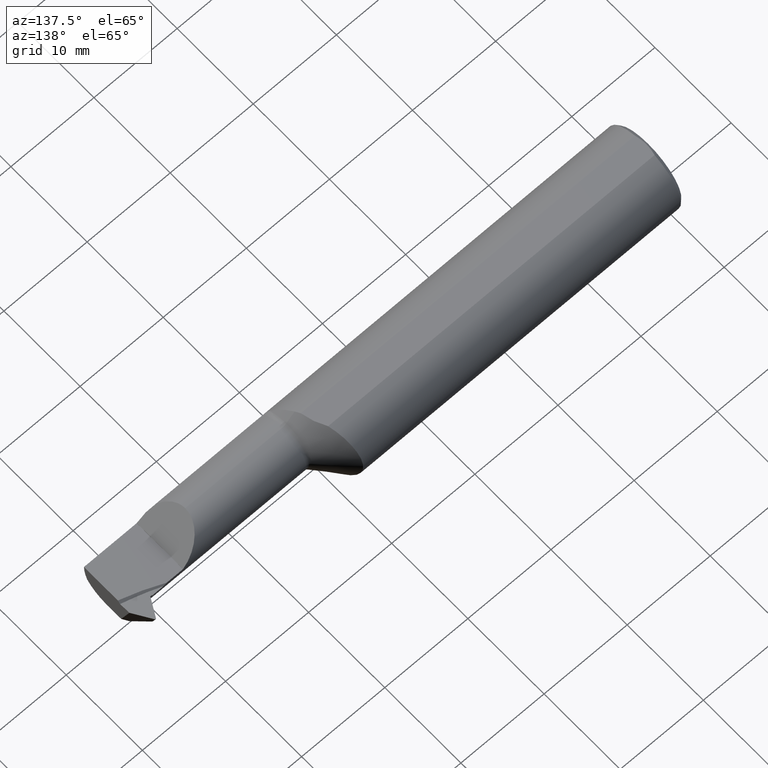
[diagram: clean part render]
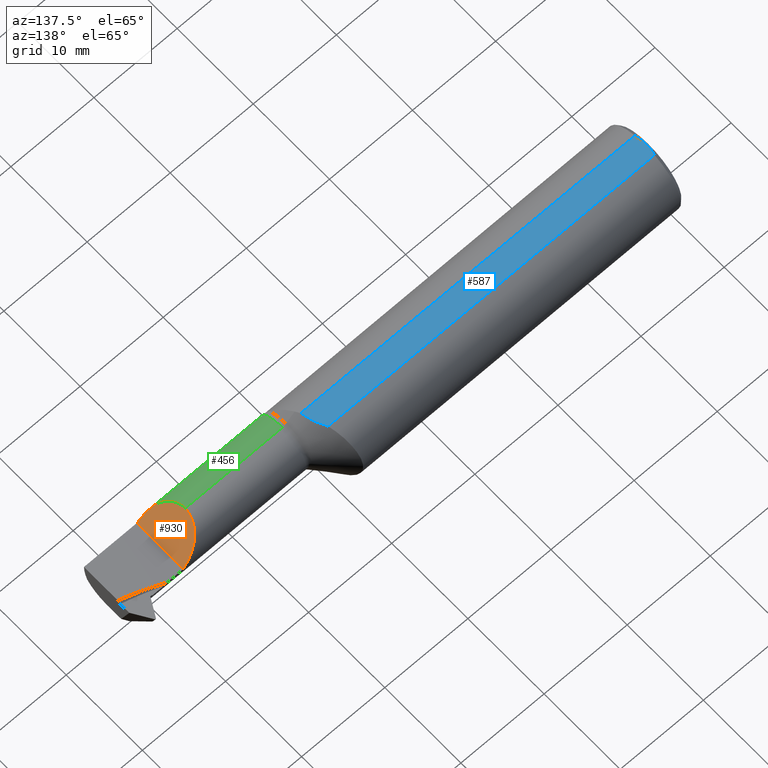
[diagram: same view with three faces highlighted in distinct colors, each labeled with its STEP entity id]
A machine part, auxiliary view with three faces highlighted in distinct colors.
Their STEP definitions:

[orange] entity #930 — the highlighted planar face has unit normal (-0.7071, 0, -0.7071).
#11 = VERTEX_POINT ( 'NONE', #324 ) ;
#23 = VERTEX_POINT ( 'NONE', #655 ) ;
#60 = VERTEX_POINT ( 'NONE', #679 ) ;
#91 = VECTOR ( 'NONE', #835, 39.37007874015748143 ) ;
#129 = ORIENTED_EDGE ( 'NONE', *, *, #424, .F. ) ;
#153 = CARTESIAN_POINT ( 'NONE',  ( 2.125649999999999373, -0.07234999999999980336, 0.1250000000000000000 ) ) ;
#158 =( BOUNDED_CURVE ( )  B_SPLINE_CURVE ( 3, ( #946, #606, #449, #924 ),
 .UNSPECIFIED., .F., .F. ) 
 B_SPLINE_CURVE_WITH_KNOTS ( ( 4, 4 ),
 ( 5.376748757289210978, 6.283185307179586232 ),
 .UNSPECIFIED. ) 
 CURVE ( )  GEOMETRIC_REPRESENTATION_ITEM ( )  RATIONAL_B_SPLINE_CURVE ( ( 1.000000000000000000, 0.9326950686634385423, 0.9326950686634385423, 1.000000000000000000 ) ) 
 REPRESENTATION_ITEM ( '' )  );
#187 = EDGE_CURVE ( 'NONE', #23, #11, #1000, .T. ) ;
#223 = EDGE_LOOP ( 'NONE', ( #329, #712, #841, #129 ) ) ;
#324 = CARTESIAN_POINT ( 'NONE',  ( 2.250000000000000000, 0.05264830998857562838, 0.0006500000000000630707 ) ) ;
#329 = ORIENTED_EDGE ( 'NONE', *, *, #947, .F. ) ;
#334 =( BOUNDED_CURVE ( )  B_SPLINE_CURVE ( 3, ( #153, #1027, #654, #896 ),
 .UNSPECIFIED., .F., .T. ) 
 B_SPLINE_CURVE_WITH_KNOTS ( ( 4, 4 ),
 ( 0.000000000000000000, 1.565596303359943819 ),
 .UNSPECIFIED. ) 
 CURVE ( )  GEOMETRIC_REPRESENTATION_ITEM ( )  RATIONAL_B_SPLINE_CURVE ( ( 1.000000000000000000, 0.8059619166604294893, 0.8059619166604294893, 1.000000000000000000 ) ) 
 REPRESENTATION_ITEM ( '' )  );
#393 = EDGE_CURVE ( 'NONE', #23, #980, #943, .T. ) ;
#424 = EDGE_CURVE ( 'NONE', #60, #11, #334, .T. ) ;
#449 = CARTESIAN_POINT ( 'NONE',  ( 2.125649999999998929, -0.1114715001235031949, 0.1250000000000000278 ) ) ;
#514 = CARTESIAN_POINT ( 'NONE',  ( 2.223545696637380331, -0.1872570901984921543, 0.02710430336261951054 ) ) ;
#532 = CARTESIAN_POINT ( 'NONE',  ( 2.173580599499921995, -0.1707639599170699407, 0.07706940050007732301 ) ) ;
#543 = CARTESIAN_POINT ( 'NONE',  ( 2.250000000000000000, -0.1873488724278853934, 0.0006500000000000633960 ) ) ;
#606 = CARTESIAN_POINT ( 'NONE',  ( 2.142779785539520976, -0.1466433954276131213, 0.1078702144604782448 ) ) ;
#654 = CARTESIAN_POINT ( 'NONE',  ( 2.177079229028278551, 0.05226911685279674036, 0.07357077097172100288 ) ) ;
#655 = CARTESIAN_POINT ( 'NONE',  ( 2.250000000000000000, -0.1873488724278853934, 0.0006500000000000633960 ) ) ;
#679 = CARTESIAN_POINT ( 'NONE',  ( 2.125649999999999373, -0.07234999999999980336, 0.1250000000000000000 ) ) ;
#696 = FACE_OUTER_BOUND ( 'NONE', #223, .T. ) ;
#712 = ORIENTED_EDGE ( 'NONE', *, *, #393, .F. ) ;
#749 = CARTESIAN_POINT ( 'NONE',  ( 2.250000000000000000, -1.050000000000000044, 0.0006500000000000633960 ) ) ;
#773 = CARTESIAN_POINT ( 'NONE',  ( 2.250000000000000000, -1.050000000000000044, 0.0006500000000000633960 ) ) ;
#810 = CARTESIAN_POINT ( 'NONE',  ( 2.173580599499921995, -0.1707639599170699407, 0.07706940050007732301 ) ) ;
#835 = DIRECTION ( 'NONE',  ( -0.000000000000000000, 1.000000000000000000, -0.000000000000000000 ) ) ;
#841 = ORIENTED_EDGE ( 'NONE', *, *, #187, .T. ) ;
#849 = AXIS2_PLACEMENT_3D ( 'NONE', #749, #853, #988 ) ;
#853 = DIRECTION ( 'NONE',  ( -0.7071067811865441310, 0.000000000000000000, -0.7071067811865510144 ) ) ;
#896 = CARTESIAN_POINT ( 'NONE',  ( 2.250000000000000000, 0.05264830998857562838, 0.0006500000000000630707 ) ) ;
#924 = CARTESIAN_POINT ( 'NONE',  ( 2.125649999999999373, -0.07234999999999980336, 0.1250000000000000000 ) ) ;
#930 = ADVANCED_FACE ( 'NONE', ( #696 ), #939, .F. ) ;
#939 = PLANE ( 'NONE',  #849 ) ;
#943 =( BOUNDED_CURVE ( )  B_SPLINE_CURVE ( 3, ( #543, #514, #957, #810 ),
 .UNSPECIFIED., .F., .T. ) 
 B_SPLINE_CURVE_WITH_KNOTS ( ( 4, 4 ),
 ( 4.715858429565467524, 5.136341099405665744 ),
 .UNSPECIFIED. ) 
 CURVE ( )  GEOMETRIC_REPRESENTATION_ITEM ( )  RATIONAL_B_SPLINE_CURVE ( ( 1.000000000000000000, 0.9853203850599061564, 0.9853203850599061564, 1.000000000000000000 ) ) 
 REPRESENTATION_ITEM ( '' )  );
#946 = CARTESIAN_POINT ( 'NONE',  ( 2.173580599499921995, -0.1707639599170699407, 0.07706940050007732301 ) ) ;
#947 = EDGE_CURVE ( 'NONE', #980, #60, #158, .T. ) ;
#957 = CARTESIAN_POINT ( 'NONE',  ( 2.197693056332493899, -0.1816464236030419233, 0.05295694366750571674 ) ) ;
#980 = VERTEX_POINT ( 'NONE', #532 ) ;
#988 = DIRECTION ( 'NONE',  ( -0.7071067811865509034, 0.000000000000000000, 0.7071067811865440200 ) ) ;
#1000 = LINE ( 'NONE', #773, #91 ) ;
#1027 = CARTESIAN_POINT ( 'NONE',  ( 2.125649999999998929, 0.0005717568805388748661, 0.1250000000000000278 ) ) ;

[blue] entity #587 — the highlighted planar face has unit normal (-0, 0, -1).
#1 = CARTESIAN_POINT ( 'NONE',  ( 2.500000000000000000, -0.05073361804563106953, 0.1803500000000000381 ) ) ;
#20 = VECTOR ( 'NONE', #664, 39.37007874015748143 ) ;
#21 = DIRECTION ( 'NONE',  ( -1.000000000000000000, 0.000000000000000000, 0.000000000000000000 ) ) ;
#56 = VERTEX_POINT ( 'NONE', #814 ) ;
#77 = CARTESIAN_POINT ( 'NONE',  ( 0.008000000000000249967, -0.008560842633729545334, 0.1803500000000000381 ) ) ;
#83 = PLANE ( 'NONE',  #656 ) ;
#97 = CARTESIAN_POINT ( 'NONE',  ( 1.597294288080051805, -0.04178548040504061895, 0.1803500000000000658 ) ) ;
#116 = B_SPLINE_CURVE_WITH_KNOTS ( 'NONE', 3,
 ( #917, #597, #173, #829, #667, #498 ),
 .UNSPECIFIED., .F., .F.,
 ( 4, 2, 4 ),
 ( 0.004855974516636805266, 0.005500369355264136430, 0.006144764193891467594 ),
 .UNSPECIFIED. ) ;
#128 = EDGE_CURVE ( 'NONE', #536, #258, #741, .T. ) ;
#130 = ORIENTED_EDGE ( 'NONE', *, *, #761, .T. ) ;
#159 = CARTESIAN_POINT ( 'NONE',  ( 0.008612241053610889679, -0.01707100630372282435, 0.1803500000000000381 ) ) ;
#173 = CARTESIAN_POINT ( 'NONE',  ( 0.01101443691611249387, 0.03415726871037062795, 0.1803500000000000381 ) ) ;
#178 = CARTESIAN_POINT ( 'NONE',  ( 1.591046750313348745, -0.01534753237029205103, 0.1803500000000000103 ) ) ;
#200 = ORIENTED_EDGE ( 'NONE', *, *, #760, .F. ) ;
#240 = ORIENTED_EDGE ( 'NONE', *, *, #641, .F. ) ;
#242 = CARTESIAN_POINT ( 'NONE',  ( 0.01499999999999942525, -0.05073361804563293609, 0.1803500000000000381 ) ) ;
#258 = VERTEX_POINT ( 'NONE', #783 ) ;
#260 = CARTESIAN_POINT ( 'NONE',  ( 1.570550515836688588, 0.03494845237870435745, 0.1803499999999999548 ) ) ;
#288 = LINE ( 'NONE', #705, #742 ) ;
#321 = CARTESIAN_POINT ( 'NONE',  ( 0.01276000437992189963, -0.04246172269127172078, 0.1803500000000000381 ) ) ;
#398 = CARTESIAN_POINT ( 'NONE',  ( 1.598359171801058576, -0.05073361804563105565, 0.1803500000000000381 ) ) ;
#459 = CARTESIAN_POINT ( 'NONE',  ( 0.007999999999990098365, 7.430558883300628535E-16, 0.1803500000000000381 ) ) ;
#460 = VERTEX_POINT ( 'NONE', #569 ) ;
#498 = CARTESIAN_POINT ( 'NONE',  ( 0.007999999999990098365, 7.430558883300628535E-16, 0.1803500000000000381 ) ) ;
#503 = CARTESIAN_POINT ( 'NONE',  ( 1.595585963931341222, -0.03292301117428798884, 0.1803500000000000658 ) ) ;
#507 = EDGE_LOOP ( 'NONE', ( #240, #200, #541, #130, #826 ) ) ;
#536 = VERTEX_POINT ( 'NONE', #398 ) ;
#541 = ORIENTED_EDGE ( 'NONE', *, *, #577, .T. ) ;
#569 = CARTESIAN_POINT ( 'NONE',  ( 0.01500000000000079568, 0.05073361804563106953, 0.1803500000000000381 ) ) ;
#577 = EDGE_CURVE ( 'NONE', #460, #940, #116, .T. ) ;
#579 = CARTESIAN_POINT ( 'NONE',  ( 1.578555425751704266, 0.01874826884798286991, 0.1803500000000000103 ) ) ;
#587 = ADVANCED_FACE ( 'NONE', ( #755 ), #83, .F. ) ;
#597 = CARTESIAN_POINT ( 'NONE',  ( 0.01277025903650790516, 0.04249959126806788362, 0.1803500000000000381 ) ) ;
#601 = B_SPLINE_CURVE_WITH_KNOTS ( 'NONE', 3,
 ( #978, #260, #579, #908, #178, #503, #97, #750 ),
 .UNSPECIFIED., .F., .F.,
 ( 4, 2, 2, 4 ),
 ( 0.004201767959908210559, 0.005580933394130890846, 0.006270516111242234458, 0.006960098828353578071 ),
 .UNSPECIFIED. ) ;
#641 = EDGE_CURVE ( 'NONE', #56, #536, #601, .T. ) ;
#656 = AXIS2_PLACEMENT_3D ( 'NONE', #677, #673, #21 ) ;
#664 = DIRECTION ( 'NONE',  ( -1.000000000000000000, -0.000000000000000000, -0.000000000000000000 ) ) ;
#667 = CARTESIAN_POINT ( 'NONE',  ( 0.008000000000000399153, 0.008563083437642069265, 0.1803500000000000381 ) ) ;
#673 = DIRECTION ( 'NONE',  ( -0.000000000000000000, 0.000000000000000000, -1.000000000000000000 ) ) ;
#677 = CARTESIAN_POINT ( 'NONE',  ( 0.000000000000000000, 0.1749999999999999889, 0.1803500000000000381 ) ) ;
#704 = B_SPLINE_CURVE_WITH_KNOTS ( 'NONE', 3,
 ( #787, #77, #159, #1042, #321, #242 ),
 .UNSPECIFIED., .F., .F.,
 ( 4, 2, 4 ),
 ( 0.006144764193891467594, 0.006788990406055669946, 0.007433216618219871431 ),
 .UNSPECIFIED. ) ;
#705 = CARTESIAN_POINT ( 'NONE',  ( 2.500000000000000000, 0.05073361804563106953, 0.1803500000000000381 ) ) ;
#741 = LINE ( 'NONE', #1, #20 ) ;
#742 = VECTOR ( 'NONE', #949, 39.37007874015748143 ) ;
#750 = CARTESIAN_POINT ( 'NONE',  ( 1.598359171801058576, -0.05073361804563105565, 0.1803500000000000381 ) ) ;
#755 = FACE_OUTER_BOUND ( 'NONE', #507, .T. ) ;
#760 = EDGE_CURVE ( 'NONE', #460, #56, #288, .T. ) ;
#761 = EDGE_CURVE ( 'NONE', #940, #258, #704, .T. ) ;
#783 = CARTESIAN_POINT ( 'NONE',  ( 0.01499999999999942525, -0.05073361804563293609, 0.1803500000000000381 ) ) ;
#787 = CARTESIAN_POINT ( 'NONE',  ( 0.007999999999990098365, 7.430558883300628535E-16, 0.1803500000000000381 ) ) ;
#814 = CARTESIAN_POINT ( 'NONE',  ( 1.561652342510382763, 0.05073361804563567001, 0.1803500000000000381 ) ) ;
#826 = ORIENTED_EDGE ( 'NONE', *, *, #128, .F. ) ;
#829 = CARTESIAN_POINT ( 'NONE',  ( 0.008625660259313151085, 0.01721603573659752362, 0.1803500000000000381 ) ) ;
#908 = CARTESIAN_POINT ( 'NONE',  ( 1.588213209911806700, -0.006643641855691782665, 0.1803500000000000381 ) ) ;
#917 = CARTESIAN_POINT ( 'NONE',  ( 0.01500000000000079568, 0.05073361804563106953, 0.1803500000000000381 ) ) ;
#940 = VERTEX_POINT ( 'NONE', #459 ) ;
#949 = DIRECTION ( 'NONE',  ( 1.000000000000000000, 0.000000000000000000, 0.000000000000000000 ) ) ;
#978 = CARTESIAN_POINT ( 'NONE',  ( 1.561652342510382763, 0.05073361804563567001, 0.1803500000000000381 ) ) ;
#1042 = CARTESIAN_POINT ( 'NONE',  ( 0.01098483483941441186, -0.03399629736709453703, 0.1803500000000000381 ) ) ;

[green] entity #456 — the highlighted cylindrical surface (edge-blend (fillet) strip) has radius 3.175 mm, axis along (-1, -0, -0).
#5 = LINE ( 'NONE', #333, #228 ) ;
#29 = ORIENTED_EDGE ( 'NONE', *, *, #555, .T. ) ;
#60 = VERTEX_POINT ( 'NONE', #679 ) ;
#112 = VERTEX_POINT ( 'NONE', #342 ) ;
#140 = VERTEX_POINT ( 'NONE', #982 ) ;
#158 =( BOUNDED_CURVE ( )  B_SPLINE_CURVE ( 3, ( #946, #606, #449, #924 ),
 .UNSPECIFIED., .F., .F. ) 
 B_SPLINE_CURVE_WITH_KNOTS ( ( 4, 4 ),
 ( 5.376748757289210978, 6.283185307179586232 ),
 .UNSPECIFIED. ) 
 CURVE ( )  GEOMETRIC_REPRESENTATION_ITEM ( )  RATIONAL_B_SPLINE_CURVE ( ( 1.000000000000000000, 0.9326950686634385423, 0.9326950686634385423, 1.000000000000000000 ) ) 
 REPRESENTATION_ITEM ( '' )  );
#228 = VECTOR ( 'NONE', #663, 39.37007874015748143 ) ;
#248 = DIRECTION ( 'NONE',  ( 0.000000000000000000, 0.000000000000000000, 1.000000000000000000 ) ) ;
#315 = ORIENTED_EDGE ( 'NONE', *, *, #947, .T. ) ;
#322 = CYLINDRICAL_SURFACE ( 'NONE', #688, 0.1250000000000000000 ) ;
#333 = CARTESIAN_POINT ( 'NONE',  ( 1.655000000000000249, -0.07234999999999980336, 0.1250000000000000000 ) ) ;
#342 = CARTESIAN_POINT ( 'NONE',  ( 1.665355339059327200, -0.07234999999999980336, 0.1250000000000000000 ) ) ;
#350 = LINE ( 'NONE', #516, #905 ) ;
#365 = EDGE_LOOP ( 'NONE', ( #315, #29, #627, #752 ) ) ;
#382 = FACE_OUTER_BOUND ( 'NONE', #365, .T. ) ;
#449 = CARTESIAN_POINT ( 'NONE',  ( 2.125649999999998929, -0.1114715001235031949, 0.1250000000000000278 ) ) ;
#456 = ADVANCED_FACE ( 'NONE', ( #382 ), #322, .T. ) ;
#515 = AXIS2_PLACEMENT_3D ( 'NONE', #643, #800, #563 ) ;
#516 = CARTESIAN_POINT ( 'NONE',  ( 2.028999999999999915, -0.1707639599170700795, 0.07706940050007714260 ) ) ;
#532 = CARTESIAN_POINT ( 'NONE',  ( 2.173580599499921995, -0.1707639599170699407, 0.07706940050007732301 ) ) ;
#555 = EDGE_CURVE ( 'NONE', #60, #112, #5, .T. ) ;
#563 = DIRECTION ( 'NONE',  ( 0.000000000000000000, 0.000000000000000000, 1.000000000000000000 ) ) ;
#603 = DIRECTION ( 'NONE',  ( 1.000000000000000000, 0.000000000000000000, 0.000000000000000000 ) ) ;
#606 = CARTESIAN_POINT ( 'NONE',  ( 2.142779785539520976, -0.1466433954276131213, 0.1078702144604782448 ) ) ;
#627 = ORIENTED_EDGE ( 'NONE', *, *, #788, .T. ) ;
#643 = CARTESIAN_POINT ( 'NONE',  ( 1.665355339059327200, -0.07234999999999980336, 0.000000000000000000 ) ) ;
#663 = DIRECTION ( 'NONE',  ( -1.000000000000000000, -0.000000000000000000, -0.000000000000000000 ) ) ;
#679 = CARTESIAN_POINT ( 'NONE',  ( 2.125649999999999373, -0.07234999999999980336, 0.1250000000000000000 ) ) ;
#680 = EDGE_CURVE ( 'NONE', #140, #980, #350, .T. ) ;
#688 = AXIS2_PLACEMENT_3D ( 'NONE', #733, #714, #248 ) ;
#714 = DIRECTION ( 'NONE',  ( -1.000000000000000000, -0.000000000000000000, -0.000000000000000000 ) ) ;
#733 = CARTESIAN_POINT ( 'NONE',  ( 1.655000000000000249, -0.07234999999999980336, 0.000000000000000000 ) ) ;
#752 = ORIENTED_EDGE ( 'NONE', *, *, #680, .T. ) ;
#788 = EDGE_CURVE ( 'NONE', #112, #140, #935, .T. ) ;
#800 = DIRECTION ( 'NONE',  ( 1.000000000000000000, 0.000000000000000000, 0.000000000000000000 ) ) ;
#905 = VECTOR ( 'NONE', #603, 39.37007874015748143 ) ;
#924 = CARTESIAN_POINT ( 'NONE',  ( 2.125649999999999373, -0.07234999999999980336, 0.1250000000000000000 ) ) ;
#935 = CIRCLE ( 'NONE', #515, 0.1250000000000000000 ) ;
#946 = CARTESIAN_POINT ( 'NONE',  ( 2.173580599499921995, -0.1707639599170699407, 0.07706940050007732301 ) ) ;
#947 = EDGE_CURVE ( 'NONE', #980, #60, #158, .T. ) ;
#980 = VERTEX_POINT ( 'NONE', #532 ) ;
#982 = CARTESIAN_POINT ( 'NONE',  ( 1.665355339059327200, -0.1707639599170700795, 0.07706940050007714260 ) ) ;